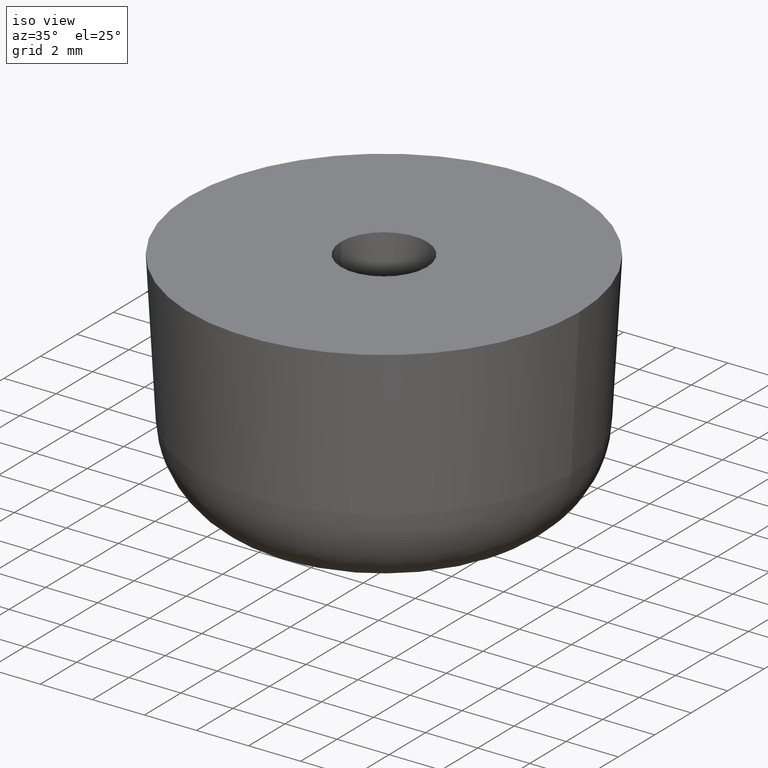
[diagram: clean part render]
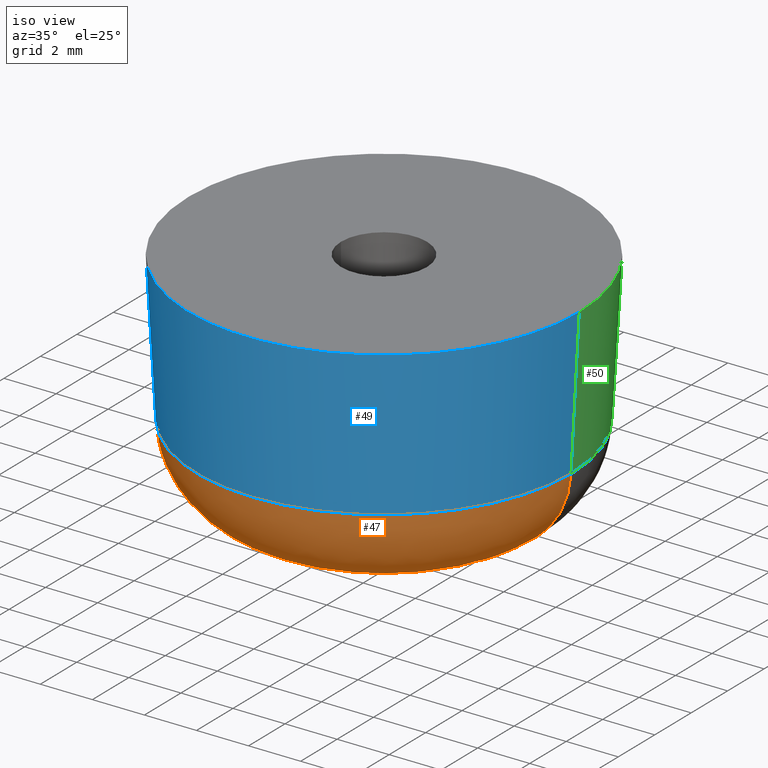
[diagram: same view with three faces highlighted in distinct colors, each labeled with its STEP entity id]
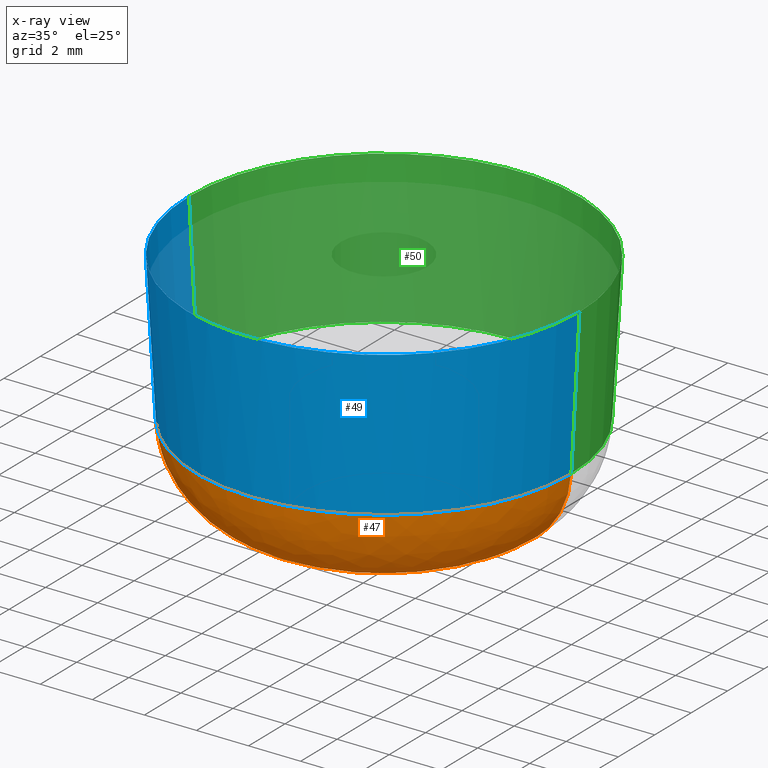
[diagram: x-ray of the same camera — body ghosted, the three highlighted faces saturated]
A machine part, iso view with three faces highlighted in distinct colors.
The next image is the same camera in x-ray (body ghosted, the three faces saturated) — at least one of them is partly hidden behind the body in this view.
Their STEP definitions:

[orange] entity #47 — the highlighted face is a freeform B-spline surface patch.
#47=ADVANCED_FACE('',(#125),#124,.T.);
#124=( BOUNDED_SURFACE() B_SPLINE_SURFACE( 2,2,((#202,#203,#204,#205,#206),(#207,#208,#209,#210,#211),(#212,#213,#214,#215,#216),(#217,#218,#219,#220,#221),(#222,#223,#224,#225,#226)), .UNSPECIFIED.,.F.,.F.,.F.) B_SPLINE_SURFACE_WITH_KNOTS((3,2,3),(3,2,3),(0.00000000000E+00,5.00000000000E-01,1.00000000000E+00),(0.00000000000E+00,5.00000000000E-01,1.00000000000E+00), .UNSPECIFIED. ) GEOMETRIC_REPRESENTATION_ITEM() RATIONAL_B_SPLINE_SURFACE(((1.00000000000E+00,7.26453721727E-01,1.00000000000E+00,7.26453721727E-01,1.00000000000E+00),(7.07106781187E-01,5.13680352851E-01,7.07106781187E-01,5.13680352851E-01,7.07106781187E-01),(1.00000000000E+00,7.26453721727E-01,1.00000000000E+00,7.26453721727E-01,1.00000000000E+00),(7.07106781187E-01,5.13680352851E-01,7.07106781187E-01,5.13680352851E-01,7.07106781187E-01),(1.00000000000E+00,7.26453721727E-01,1.00000000000E+00,7.26453721727E-01,1.00000000000E+00))) REPRESENTATION_ITEM('') SURFACE() );
#125=FACE_OUTER_BOUND('',#227,.T.);
#202=CARTESIAN_POINT('',(7.18365860730E+00,-8.79715397419E-16,-5.69414506868E+00));
#203=CARTESIAN_POINT('',(7.00000000000E+00,-8.57224447676E-16,-9.00000000000E+00));
#204=CARTESIAN_POINT('',(3.68904737108E+00,-4.51763085017E-16,-9.00000000000E+00));
#205=CARTESIAN_POINT('',(3.78094742155E-01,-4.63017223590E-17,-9.00000000000E+00));
#206=CARTESIAN_POINT('',(1.94436134859E-01,-2.38107726161E-17,-5.69414506868E+00));
#207=CARTESIAN_POINT('',(7.18365860730E+00,-7.18365860730E+00,-5.69414506868E+00));
#208=CARTESIAN_POINT('',(7.00000000000E+00,-7.00000000000E+00,-9.00000000000E+00));
#209=CARTESIAN_POINT('',(3.68904737108E+00,-3.68904737108E+00,-9.00000000000E+00));
#210=CARTESIAN_POINT('',(3.78094742155E-01,-3.78094742155E-01,-9.00000000000E+00));
#211=CARTESIAN_POINT('',(1.94436134859E-01,-1.94436134859E-01,-5.69414506868E+00));
#212=CARTESIAN_POINT('',(1.04021785534E-14,-7.18365860730E+00,-5.69414506868E+00));
#213=CARTESIAN_POINT('',(1.04134236569E-14,-7.00000000000E+00,-9.00000000000E+00));
#214=CARTESIAN_POINT('',(1.06161476426E-14,-3.68904737108E+00,-9.00000000000E+00));
#215=CARTESIAN_POINT('',(1.08188716283E-14,-3.78094742155E-01,-9.00000000000E+00));
#216=CARTESIAN_POINT('',(1.08301167317E-14,-1.94436134859E-01,-5.69414506868E+00));
#217=CARTESIAN_POINT('',(-7.18365860730E+00,-7.18365860730E+00,-5.69414506868E+00));
#218=CARTESIAN_POINT('',(-7.00000000000E+00,-7.00000000000E+00,-9.00000000000E+00));
#219=CARTESIAN_POINT('',(-3.68904737108E+00,-3.68904737108E+00,-9.00000000000E+00));
#220=CARTESIAN_POINT('',(-3.78094742155E-01,-3.78094742155E-01,-9.00000000000E+00));
#221=CARTESIAN_POINT('',(-1.94436134859E-01,-1.94436134859E-01,-5.69414506868E+00));
#222=CARTESIAN_POINT('',(-7.18365860730E+00,-2.90545406890E-20,-5.69414506868E+00));
#223=CARTESIAN_POINT('',(-7.00000000000E+00,-2.83117274831E-20,-9.00000000000E+00));
#224=CARTESIAN_POINT('',(-3.68904737108E+00,-1.49204719776E-20,-9.00000000000E+00));
#225=CARTESIAN_POINT('',(-3.78094742155E-01,-1.52921647206E-21,-9.00000000000E+00));
#226=CARTESIAN_POINT('',(-1.94436134859E-01,-7.86403266279E-22,-5.69414506868E+00));
#227=EDGE_LOOP('',(#304,#305,#306,#307));
#304=ORIENTED_EDGE('',*,*,#329,.F.);
#305=ORIENTED_EDGE('',*,*,#336,.F.);
#306=ORIENTED_EDGE('',*,*,#337,.T.);
#307=ORIENTED_EDGE('',*,*,#338,.T.);
#329=EDGE_CURVE('',#399,#398,#406,.T.);
#336=EDGE_CURVE('',#450,#399,#451,.T.);
#337=EDGE_CURVE('',#450,#457,#458,.T.);
#338=EDGE_CURVE('',#457,#398,#464,.T.);
#398=VERTEX_POINT('',#528);
#399=VERTEX_POINT('',#529);
#406=CIRCLE('',#537,3.68904737108E+00);
#450=VERTEX_POINT('',#556);
#451=(BOUNDED_CURVE() B_SPLINE_CURVE(2,(#557,#558,#559),.UNSPECIFIED.,.F.,.F.) B_SPLINE_CURVE_WITH_KNOTS((3,3),(0.00000000000E+00,5.00000000000E-01),.UNSPECIFIED.) CURVE() GEOMETRIC_REPRESENTATION_ITEM() RATIONAL_B_SPLINE_CURVE((1.00000000000E+00,7.26453721727E-01,1.00000000000E+00)) REPRESENTATION_ITEM('') );
#457=VERTEX_POINT('',#560);
#458=CIRCLE('',#564,7.18365860730E+00);
#464=(BOUNDED_CURVE() B_SPLINE_CURVE(3,(#565,#566,#567,#568,#569),.UNSPECIFIED.,.F.,.F.) B_SPLINE_CURVE_WITH_KNOTS((4,1,4),(0.00000000000E+00,2.50000125934E-01,5.00000220683E-01),.UNSPECIFIED.) CURVE() GEOMETRIC_REPRESENTATION_ITEM() RATIONAL_B_SPLINE_CURVE((1.00000000000E+00,1.00000000000E+00,1.00000000000E+00,1.00000000000E+00,1.00000000000E+00)) REPRESENTATION_ITEM('') );
#528=CARTESIAN_POINT('',(-3.68904737108E+00,0.00000000000E+00,-9.00000000000E+00));
#529=CARTESIAN_POINT('',(3.68904737108E+00,4.44089209850E-16,-9.00000000000E+00));
#534=CARTESIAN_POINT('',(1.06581410364E-14,0.00000000000E+00,-9.00000000000E+00));
#535=DIRECTION('',(-0.00000000000E+00,0.00000000000E+00,-1.00000000000E+00));
#536=DIRECTION('',(-1.00000000000E+00,-1.22460635382E-16,0.00000000000E+00));
#537=AXIS2_PLACEMENT_3D('',#534,#535,#536);
#556=CARTESIAN_POINT('',(7.18365860730E+00,2.96059473233E-16,-5.69414506868E+00));
#557=CARTESIAN_POINT('',(7.18365860730E+00,-8.79715397419E-16,-5.69414506868E+00));
#558=CARTESIAN_POINT('',(7.00000000000E+00,-8.57224447676E-16,-9.00000000000E+00));
#559=CARTESIAN_POINT('',(3.68904737108E+00,-4.51763085017E-16,-9.00000000000E+00));
#560=CARTESIAN_POINT('',(-7.18365860730E+00,0.00000000000E+00,-5.69414506868E+00));
#561=CARTESIAN_POINT('',(1.06581410364E-14,0.00000000000E+00,-5.69414506868E+00));
#562=DIRECTION('',(-0.00000000000E+00,0.00000000000E+00,-1.00000000000E+00));
#563=DIRECTION('',(-1.00000000000E+00,-1.22460635382E-16,0.00000000000E+00));
#564=AXIS2_PLACEMENT_3D('',#561,#562,#563);
#565=CARTESIAN_POINT('',(-7.18365860730E+00,5.92118946467E-16,-5.69414506868E+00));
#566=CARTESIAN_POINT('',(-7.14175381409E+00,6.51618793040E-16,-6.56962388523E+00));
#567=CARTESIAN_POINT('',(-6.33497368721E+00,7.20254524099E-16,-8.29700410815E+00));
#568=CARTESIAN_POINT('',(-4.56550048257E+00,6.51618783488E-16,-9.00672307920E+00));
#569=CARTESIAN_POINT('',(-3.68904524788E+00,5.92118607597E-16,-9.00000000000E+00));

[blue] entity #49 — the highlighted face is a freeform B-spline surface patch.
#49=ADVANCED_FACE('',(#145),#144,.T.);
#144=( BOUNDED_SURFACE() B_SPLINE_SURFACE( 2,1,((#254,#255),(#256,#257),(#258,#259),(#260,#261),(#262,#263)), .UNSPECIFIED.,.F.,.F.,.F.) B_SPLINE_SURFACE_WITH_KNOTS((3,2,3),(2,2),(0.00000000000E+00,5.00000000000E-01,1.00000000000E+00),(0.00000000000E+00,1.00000000000E+00), .UNSPECIFIED. ) GEOMETRIC_REPRESENTATION_ITEM() RATIONAL_B_SPLINE_SURFACE(((1.00000000000E+00,1.00000000000E+00),(7.07106781187E-01,7.07106781187E-01),(1.00000000000E+00,1.00000000000E+00),(7.07106781187E-01,7.07106781187E-01),(1.00000000000E+00,1.00000000000E+00))) REPRESENTATION_ITEM('') SURFACE() );
#145=FACE_OUTER_BOUND('',#264,.T.);
#254=CARTESIAN_POINT('',(-7.18365860730E+00,-1.75948890392E-15,-5.69414506868E+00));
#255=CARTESIAN_POINT('',(-7.50000000000E+00,-1.83697019872E-15,0.00000000000E+00));
#256=CARTESIAN_POINT('',(-7.18365860730E+00,-7.18365860730E+00,-5.69414506868E+00));
#257=CARTESIAN_POINT('',(-7.50000000000E+00,-7.50000000000E+00,0.00000000000E+00));
#258=CARTESIAN_POINT('',(1.19777577143E-14,-7.18365860730E+00,-5.69414506868E+00));
#259=CARTESIAN_POINT('',(1.20358686854E-14,-7.50000000000E+00,0.00000000000E+00));
#260=CARTESIAN_POINT('',(7.18365860730E+00,-7.18365860730E+00,-5.69414506868E+00));
#261=CARTESIAN_POINT('',(7.50000000000E+00,-7.50000000000E+00,0.00000000000E+00));
#262=CARTESIAN_POINT('',(7.18365860730E+00,8.79744451959E-16,-5.69414506868E+00));
#263=CARTESIAN_POINT('',(7.50000000000E+00,9.18485099361E-16,0.00000000000E+00));
#264=EDGE_LOOP('',(#312,#313,#314,#315));
#312=ORIENTED_EDGE('',*,*,#320,.T.);
#313=ORIENTED_EDGE('',*,*,#340,.F.);
#314=ORIENTED_EDGE('',*,*,#337,.F.);
#315=ORIENTED_EDGE('',*,*,#341,.T.);
#320=EDGE_CURVE('',#342,#343,#344,.T.);
#337=EDGE_CURVE('',#450,#457,#458,.T.);
#340=EDGE_CURVE('',#457,#343,#476,.T.);
#341=EDGE_CURVE('',#450,#342,#482,.T.);
#342=VERTEX_POINT('',#488);
#343=VERTEX_POINT('',#489);
#344=CIRCLE('',#493,7.50000000000E+00);
#450=VERTEX_POINT('',#556);
#457=VERTEX_POINT('',#560);
#458=CIRCLE('',#564,7.18365860730E+00);
#476=(BOUNDED_CURVE() B_SPLINE_CURVE(1,(#574,#575),.UNSPECIFIED.,.F.,.F.) B_SPLINE_CURVE_WITH_KNOTS((2,2),(0.00000000000E+00,1.00000000000E+00),.UNSPECIFIED.) CURVE() GEOMETRIC_REPRESENTATION_ITEM() RATIONAL_B_SPLINE_CURVE((1.00000000000E+00,1.00000000000E+00)) REPRESENTATION_ITEM('') );
#482=(BOUNDED_CURVE() B_SPLINE_CURVE(1,(#576,#577),.UNSPECIFIED.,.F.,.F.) B_SPLINE_CURVE_WITH_KNOTS((2,2),(0.00000000000E+00,1.00000000000E+00),.UNSPECIFIED.) CURVE() GEOMETRIC_REPRESENTATION_ITEM() RATIONAL_B_SPLINE_CURVE((7.50000000000E-01,7.50000000000E-01)) REPRESENTATION_ITEM('') );
#488=CARTESIAN_POINT('',(7.50000000000E+00,8.88178419700E-16,4.03795809277E-25));
#489=CARTESIAN_POINT('',(-7.50000000000E+00,0.00000000000E+00,4.03795809277E-25));
#490=CARTESIAN_POINT('',(1.06581410364E-14,0.00000000000E+00,4.03795809277E-25));
#491=DIRECTION('',(-0.00000000000E+00,0.00000000000E+00,-1.00000000000E+00));
#492=DIRECTION('',(-1.00000000000E+00,-1.22460635382E-16,0.00000000000E+00));
#493=AXIS2_PLACEMENT_3D('',#490,#491,#492);
#556=CARTESIAN_POINT('',(7.18365860730E+00,2.96059473233E-16,-5.69414506868E+00));
#560=CARTESIAN_POINT('',(-7.18365860730E+00,0.00000000000E+00,-5.69414506868E+00));
#561=CARTESIAN_POINT('',(1.06581410364E-14,0.00000000000E+00,-5.69414506868E+00));
#562=DIRECTION('',(-0.00000000000E+00,0.00000000000E+00,-1.00000000000E+00));
#563=DIRECTION('',(-1.00000000000E+00,-1.22460635382E-16,0.00000000000E+00));
#564=AXIS2_PLACEMENT_3D('',#561,#562,#563);
#574=CARTESIAN_POINT('',(-7.18365860730E+00,-1.75943079484E-15,-5.69414506868E+00));
#575=CARTESIAN_POINT('',(-7.50000000000E+00,-1.83690953073E-15,0.00000000000E+00));
#576=CARTESIAN_POINT('',(7.18365860730E+00,1.77635683940E-15,-5.69414506868E+00));
#577=CARTESIAN_POINT('',(7.50000000000E+00,2.07241631263E-15,0.00000000000E+00));

[green] entity #50 — the highlighted face is a freeform B-spline surface patch.
#50=ADVANCED_FACE('',(#155),#154,.T.);
#154=( BOUNDED_SURFACE() B_SPLINE_SURFACE( 2,1,((#265,#266),(#267,#268),(#269,#270),(#271,#272),(#273,#274)), .UNSPECIFIED.,.F.,.F.,.F.) B_SPLINE_SURFACE_WITH_KNOTS((3,2,3),(2,2),(0.00000000000E+00,5.00000000000E-01,1.00000000000E+00),(0.00000000000E+00,1.00000000000E+00), .UNSPECIFIED. ) GEOMETRIC_REPRESENTATION_ITEM() RATIONAL_B_SPLINE_SURFACE(((1.00000000000E+00,1.00000000000E+00),(7.07106781187E-01,7.07106781187E-01),(1.00000000000E+00,1.00000000000E+00),(7.07106781187E-01,7.07106781187E-01),(1.00000000000E+00,1.00000000000E+00))) REPRESENTATION_ITEM('') SURFACE() );
#155=FACE_OUTER_BOUND('',#275,.T.);
#265=CARTESIAN_POINT('',(7.18365860730E+00,8.79744451959E-16,-5.69414506868E+00));
#266=CARTESIAN_POINT('',(7.50000000000E+00,9.18485099361E-16,0.00000000000E+00));
#267=CARTESIAN_POINT('',(7.18365860730E+00,7.18365860730E+00,-5.69414506868E+00));
#268=CARTESIAN_POINT('',(7.50000000000E+00,7.50000000000E+00,0.00000000000E+00));
#269=CARTESIAN_POINT('',(1.02182688104E-14,7.18365860730E+00,-5.69414506868E+00));
#270=CARTESIAN_POINT('',(1.01988984867E-14,7.50000000000E+00,0.00000000000E+00));
#271=CARTESIAN_POINT('',(-7.18365860730E+00,7.18365860730E+00,-5.69414506868E+00));
#272=CARTESIAN_POINT('',(-7.50000000000E+00,7.50000000000E+00,0.00000000000E+00));
#273=CARTESIAN_POINT('',(-7.18365860730E+00,0.00000000000E+00,-5.69414506868E+00));
#274=CARTESIAN_POINT('',(-7.50000000000E+00,0.00000000000E+00,0.00000000000E+00));
#275=EDGE_LOOP('',(#316,#317,#318,#319));
#316=ORIENTED_EDGE('',*,*,#339,.F.);
#317=ORIENTED_EDGE('',*,*,#340,.T.);
#318=ORIENTED_EDGE('',*,*,#321,.T.);
#319=ORIENTED_EDGE('',*,*,#341,.F.);
#321=EDGE_CURVE('',#343,#342,#350,.T.);
#339=EDGE_CURVE('',#457,#450,#470,.T.);
#340=EDGE_CURVE('',#457,#343,#476,.T.);
#341=EDGE_CURVE('',#450,#342,#482,.T.);
#342=VERTEX_POINT('',#488);
#343=VERTEX_POINT('',#489);
#350=CIRCLE('',#497,7.50000000000E+00);
#450=VERTEX_POINT('',#556);
#457=VERTEX_POINT('',#560);
#470=CIRCLE('',#573,7.18365860730E+00);
#476=(BOUNDED_CURVE() B_SPLINE_CURVE(1,(#574,#575),.UNSPECIFIED.,.F.,.F.) B_SPLINE_CURVE_WITH_KNOTS((2,2),(0.00000000000E+00,1.00000000000E+00),.UNSPECIFIED.) CURVE() GEOMETRIC_REPRESENTATION_ITEM() RATIONAL_B_SPLINE_CURVE((1.00000000000E+00,1.00000000000E+00)) REPRESENTATION_ITEM('') );
#482=(BOUNDED_CURVE() B_SPLINE_CURVE(1,(#576,#577),.UNSPECIFIED.,.F.,.F.) B_SPLINE_CURVE_WITH_KNOTS((2,2),(0.00000000000E+00,1.00000000000E+00),.UNSPECIFIED.) CURVE() GEOMETRIC_REPRESENTATION_ITEM() RATIONAL_B_SPLINE_CURVE((7.50000000000E-01,7.50000000000E-01)) REPRESENTATION_ITEM('') );
#488=CARTESIAN_POINT('',(7.50000000000E+00,8.88178419700E-16,4.03795809277E-25));
#489=CARTESIAN_POINT('',(-7.50000000000E+00,0.00000000000E+00,4.03795809277E-25));
#494=CARTESIAN_POINT('',(1.06581410364E-14,0.00000000000E+00,4.03795809277E-25));
#495=DIRECTION('',(-0.00000000000E+00,0.00000000000E+00,-1.00000000000E+00));
#496=DIRECTION('',(-1.00000000000E+00,-1.22460635382E-16,0.00000000000E+00));
#497=AXIS2_PLACEMENT_3D('',#494,#495,#496);
#556=CARTESIAN_POINT('',(7.18365860730E+00,2.96059473233E-16,-5.69414506868E+00));
#560=CARTESIAN_POINT('',(-7.18365860730E+00,0.00000000000E+00,-5.69414506868E+00));
#570=CARTESIAN_POINT('',(1.06581410364E-14,0.00000000000E+00,-5.69414506868E+00));
#571=DIRECTION('',(-0.00000000000E+00,0.00000000000E+00,-1.00000000000E+00));
#572=DIRECTION('',(-1.00000000000E+00,-1.22460635382E-16,0.00000000000E+00));
#573=AXIS2_PLACEMENT_3D('',#570,#571,#572);
#574=CARTESIAN_POINT('',(-7.18365860730E+00,-1.75943079484E-15,-5.69414506868E+00));
#575=CARTESIAN_POINT('',(-7.50000000000E+00,-1.83690953073E-15,0.00000000000E+00));
#576=CARTESIAN_POINT('',(7.18365860730E+00,1.77635683940E-15,-5.69414506868E+00));
#577=CARTESIAN_POINT('',(7.50000000000E+00,2.07241631263E-15,0.00000000000E+00));